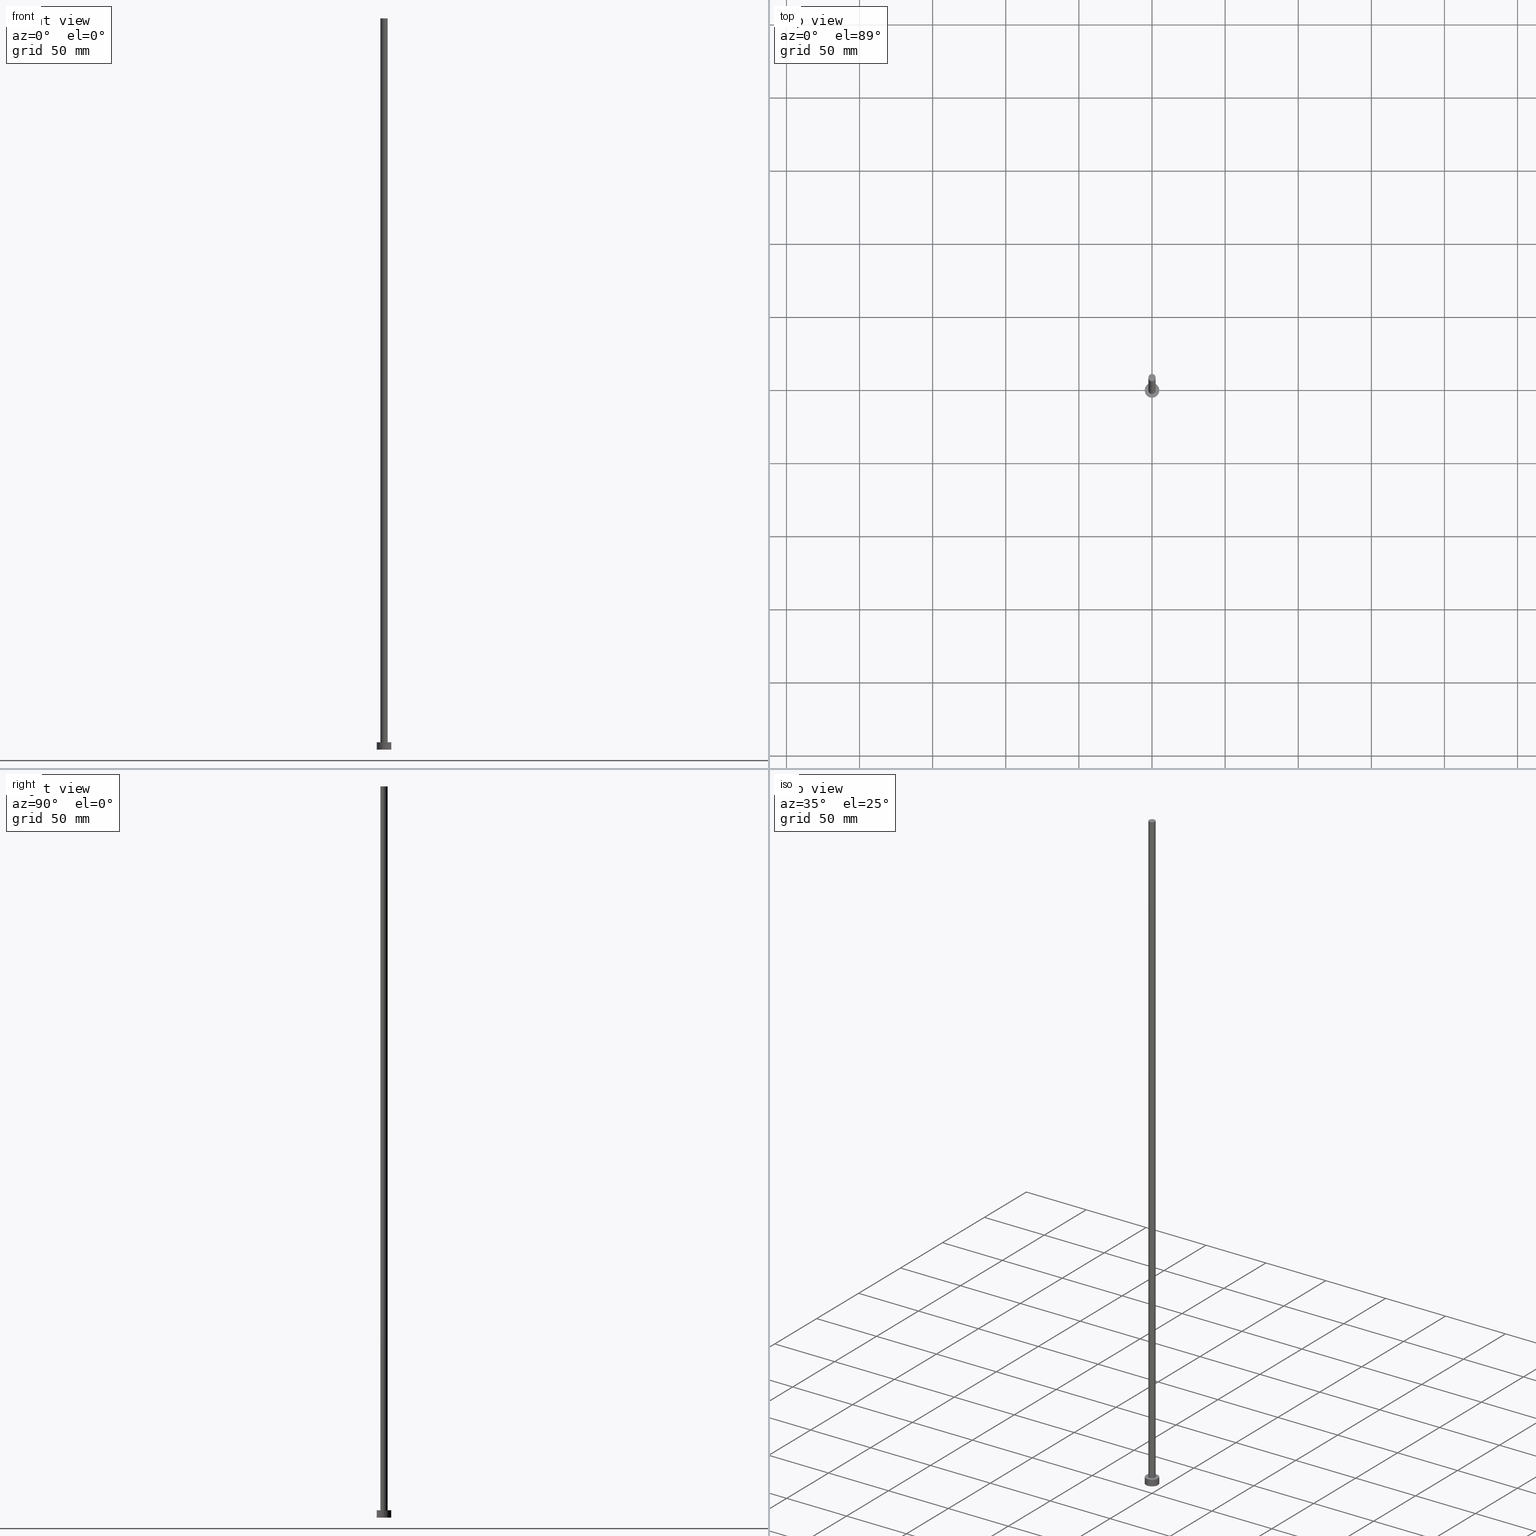
[diagram: canonical four-view strip — front | top / right | iso, engineering-drawing reading convention]
A machine part, canonical four-view strip (front | top / right | iso — engineering-drawing reading convention). The complete STEP part file that produces these views, byte-faithful:
ISO-10303-21;
HEADER;
FILE_DESCRIPTION (( 'STEP AP203' ),
    '1' );
FILE_NAME ('6989.STEP',
    '2023-02-13T16:05:43',
    ( '' ),
    ( '' ),
    'SwSTEP 2.0',
    'SolidWorks 2019',
    '' );
FILE_SCHEMA (( 'CONFIG_CONTROL_DESIGN' ));
ENDSEC;

DATA;
#1 = CARTESIAN_POINT ( 'NONE',  ( 5.000000000000000000, 6.123233995736766282E-16, 5.000000000000000000 ) ) ;
#2 = EDGE_CURVE ( 'NONE', #78, #222, #195, .T. ) ;
#3 = FACE_OUTER_BOUND ( 'NONE', #15, .T. ) ;
#4 = CALENDAR_DATE ( 2023, 13, 2 ) ;
#5 = DATE_AND_TIME ( #187, #160 ) ;
#6 = CC_DESIGN_PERSON_AND_ORGANIZATION_ASSIGNMENT ( #76, #162, ( #10 ) ) ;
#7 = AXIS2_PLACEMENT_3D ( 'NONE', #198, #174, #18 ) ;
#8 = CARTESIAN_POINT ( 'NONE',  ( 2.500000000000000000, 3.061616997868383141E-16, 500.0000000000000000 ) ) ;
#9 = CALENDAR_DATE ( 2023, 13, 2 ) ;
#10 = PRODUCT_DEFINITION_FORMATION_WITH_SPECIFIED_SOURCE ( 'LIBOVOLN�', '', #88, .NOT_KNOWN. ) ;
#11 = APPROVAL_DATE_TIME ( #121, #197 ) ;
#12 = VERTEX_POINT ( 'NONE', #1 ) ;
#13 = DIRECTION ( 'NONE',  ( -0.000000000000000000, -0.000000000000000000, -1.000000000000000000 ) ) ;
#14 = ADVANCED_FACE ( 'NONE', ( #165 ), #244, .T. ) ;
#15 = EDGE_LOOP ( 'NONE', ( #141, #103 ) ) ;
#16 = EDGE_LOOP ( 'NONE', ( #229, #183, #129, #101 ) ) ;
#17 = VECTOR ( 'NONE', #31, 1000.000000000000000 ) ;
#18 = DIRECTION ( 'NONE',  ( 1.000000000000000000, 0.000000000000000000, 0.000000000000000000 ) ) ;
#19 = CC_DESIGN_APPROVAL ( #203, ( #245 ) ) ;
#20 = VERTEX_POINT ( 'NONE', #213 ) ;
#21 = APPLICATION_CONTEXT ( 'configuration controlled 3d designs of mechanical parts and assemblies' ) ;
#22 = CARTESIAN_POINT ( 'NONE',  ( 0.000000000000000000, 0.000000000000000000, 0.000000000000000000 ) ) ;
#23 = EDGE_CURVE ( 'NONE', #78, #43, #250, .T. ) ;
#24 = AXIS2_PLACEMENT_3D ( 'NONE', #108, #190, #210 ) ;
#25 = AXIS2_PLACEMENT_3D ( 'NONE', #35, #120, #94 ) ;
#26 = ORIENTED_EDGE ( 'NONE', *, *, #59, .T. ) ;
#27 = CARTESIAN_POINT ( 'NONE',  ( 0.000000000000000000, 0.000000000000000000, 500.0000000000000000 ) ) ;
#28 = LOCAL_TIME ( 17, 5, 43.00000000000000000, #102 ) ;
#29 = CARTESIAN_POINT ( 'NONE',  ( 5.000000000000000000, 6.123233995736766282E-16, 5.000000000000000000 ) ) ;
#30 = APPROVAL_ROLE ( '' ) ;
#31 = DIRECTION ( 'NONE',  ( -0.000000000000000000, -0.000000000000000000, -1.000000000000000000 ) ) ;
#32 = ORIENTED_EDGE ( 'NONE', *, *, #2, .F. ) ;
#33 = DIRECTION ( 'NONE',  ( 0.000000000000000000, 0.000000000000000000, 1.000000000000000000 ) ) ;
#34 = PERSON_AND_ORGANIZATION ( #107, #214 ) ;
#35 = CARTESIAN_POINT ( 'NONE',  ( 0.000000000000000000, 0.000000000000000000, 0.000000000000000000 ) ) ;
#36 = AXIS2_PLACEMENT_3D ( 'NONE', #136, #66, #84 ) ;
#37 = AXIS2_PLACEMENT_3D ( 'NONE', #122, #200, #118 ) ;
#38 = CARTESIAN_POINT ( 'NONE',  ( -5.000000000000000000, 0.000000000000000000, 0.000000000000000000 ) ) ;
#39 = ORIENTED_EDGE ( 'NONE', *, *, #59, .F. ) ;
#40 = AXIS2_PLACEMENT_3D ( 'NONE', #138, #13, #220 ) ;
#41 = CC_DESIGN_PERSON_AND_ORGANIZATION_ASSIGNMENT ( #176, #199, ( #245 ) ) ;
#42 = MECHANICAL_CONTEXT ( 'NONE', #206, 'mechanical' ) ;
#43 = VERTEX_POINT ( 'NONE', #216 ) ;
#44 = CC_DESIGN_PERSON_AND_ORGANIZATION_ASSIGNMENT ( #161, #98, ( #10 ) ) ;
#45 = DATE_AND_TIME ( #4, #28 ) ;
#46 = CARTESIAN_POINT ( 'NONE',  ( 0.000000000000000000, 0.000000000000000000, 5.000000000000000000 ) ) ;
#47 = DIRECTION ( 'NONE',  ( -0.000000000000000000, -0.000000000000000000, -1.000000000000000000 ) ) ;
#48 = LOCAL_TIME ( 17, 5, 43.00000000000000000, #144 ) ;
#49 = ADVANCED_FACE ( 'NONE', ( #50, #3 ), #86, .T. ) ;
#50 = FACE_BOUND ( 'NONE', #54, .T. ) ;
#51 = ADVANCED_FACE ( 'NONE', ( #248 ), #110, .T. ) ;
#52 = DESIGN_CONTEXT ( 'detailed design', #21, 'design' ) ;
#53 = CARTESIAN_POINT ( 'NONE',  ( 0.000000000000000000, 0.000000000000000000, 5.000000000000000000 ) ) ;
#54 = EDGE_LOOP ( 'NONE', ( #151, #60 ) ) ;
#55 = CC_DESIGN_SECURITY_CLASSIFICATION ( #62, ( #10 ) ) ;
#56 = CARTESIAN_POINT ( 'NONE',  ( 2.500000000000000000, 3.061616997868383141E-16, 5.000000000000000000 ) ) ;
#57 = CARTESIAN_POINT ( 'NONE',  ( 0.000000000000000000, 0.000000000000000000, 5.000000000000000000 ) ) ;
#58 = PERSON_AND_ORGANIZATION ( #107, #214 ) ;
#59 = EDGE_CURVE ( 'NONE', #222, #78, #61, .T. ) ;
#60 = ORIENTED_EDGE ( 'NONE', *, *, #172, .F. ) ;
#61 = CIRCLE ( 'NONE', #179, 2.500000000000000000 ) ;
#62 = SECURITY_CLASSIFICATION ( '', '', #146 ) ;
#63 = CARTESIAN_POINT ( 'NONE',  ( 0.000000000000000000, 0.000000000000000000, 5.000000000000000000 ) ) ;
#64 = PLANE ( 'NONE',  #24 ) ;
#65 = CALENDAR_DATE ( 2023, 13, 2 ) ;
#66 = DIRECTION ( 'NONE',  ( -0.000000000000000000, -0.000000000000000000, -1.000000000000000000 ) ) ;
#67 = EDGE_CURVE ( 'NONE', #222, #242, #247, .T. ) ;
#68 = PRODUCT_RELATED_PRODUCT_CATEGORY ( 'detail', '', ( #88 ) ) ;
#69 = AXIS2_PLACEMENT_3D ( 'NONE', #46, #155, #215 ) ;
#70 = APPROVAL ( #246, 'NEUR�EN�' ) ;
#71 = CARTESIAN_POINT ( 'NONE',  ( 2.500000000000000000, 3.061616997868383141E-16, 500.0000000000000000 ) ) ;
#72 = EDGE_CURVE ( 'NONE', #43, #242, #219, .T. ) ;
#73 =( LENGTH_UNIT ( ) NAMED_UNIT ( * ) SI_UNIT ( .MILLI., .METRE. ) );
#74 = CIRCLE ( 'NONE', #7, 5.000000000000000000 ) ;
#75 = VECTOR ( 'NONE', #192, 1000.000000000000000 ) ;
#76 = PERSON_AND_ORGANIZATION ( #107, #214 ) ;
#77 = ORIENTED_EDGE ( 'NONE', *, *, #109, .T. ) ;
#78 = VERTEX_POINT ( 'NONE', #90 ) ;
#79 = ORIENTED_EDGE ( 'NONE', *, *, #182, .F. ) ;
#80 = ADVANCED_BREP_SHAPE_REPRESENTATION ( '6989', ( #132, #127 ), #237 ) ;
#81 = CLOSED_SHELL ( 'NONE', ( #209, #124, #14, #49, #255, #51, #105 ) ) ;
#82 = COORDINATED_UNIVERSAL_TIME_OFFSET ( 1, 0, .AHEAD. ) ;
#83 = LOCAL_TIME ( 17, 5, 43.00000000000000000, #221 ) ;
#84 = DIRECTION ( 'NONE',  ( -1.000000000000000000, 0.000000000000000000, 0.000000000000000000 ) ) ;
#85 = UNCERTAINTY_MEASURE_WITH_UNIT (LENGTH_MEASURE( 1.000000000000000082E-05 ), #73, 'distance_accuracy_value', 'NONE');
#86 = PLANE ( 'NONE',  #69 ) ;
#87 = APPROVAL_STATUS ( 'not_yet_approved' ) ;
#88 = PRODUCT ( '6989', '6989', '', ( #42 ) ) ;
#89 = LINE ( 'NONE', #29, #227 ) ;
#90 = CARTESIAN_POINT ( 'NONE',  ( -2.500000000000000000, 0.000000000000000000, 500.0000000000000000 ) ) ;
#91 = ORIENTED_EDGE ( 'NONE', *, *, #182, .T. ) ;
#92 =( NAMED_UNIT ( * ) PLANE_ANGLE_UNIT ( ) SI_UNIT ( $, .RADIAN. ) );
#93 = CARTESIAN_POINT ( 'NONE',  ( 0.000000000000000000, 0.000000000000000000, 5.000000000000000000 ) ) ;
#94 = DIRECTION ( 'NONE',  ( 1.000000000000000000, 0.000000000000000000, 0.000000000000000000 ) ) ;
#95 = APPROVAL_PERSON_ORGANIZATION ( #166, #70, #208 ) ;
#96 = DIRECTION ( 'NONE',  ( -1.000000000000000000, 0.000000000000000000, 0.000000000000000000 ) ) ;
#97 = ORIENTED_EDGE ( 'NONE', *, *, #172, .T. ) ;
#98 = PERSON_AND_ORGANIZATION_ROLE ( 'creator' ) ;
#99 = AXIS2_PLACEMENT_3D ( 'NONE', #27, #104, #184 ) ;
#100 = CIRCLE ( 'NONE', #25, 5.000000000000000000 ) ;
#101 = ORIENTED_EDGE ( 'NONE', *, *, #226, .T. ) ;
#102 = COORDINATED_UNIVERSAL_TIME_OFFSET ( 1, 0, .AHEAD. ) ;
#103 = ORIENTED_EDGE ( 'NONE', *, *, #185, .T. ) ;
#104 = DIRECTION ( 'NONE',  ( 0.000000000000000000, 0.000000000000000000, 1.000000000000000000 ) ) ;
#105 = ADVANCED_FACE ( 'NONE', ( #171 ), #64, .T. ) ;
#106 = LOCAL_TIME ( 17, 5, 43.00000000000000000, #82 ) ;
#107 = PERSON ( 'NEUR�EN�', 'NEUR�EN�', 'NEUR�EN�', ('NEUR�EN�'), ('NEUR�EN�'), ('NEUR�EN�') ) ;
#108 = CARTESIAN_POINT ( 'NONE',  ( 0.000000000000000000, 0.000000000000000000, 500.0000000000000000 ) ) ;
#109 = EDGE_CURVE ( 'NONE', #12, #239, #89, .T. ) ;
#110 = CYLINDRICAL_SURFACE ( 'NONE', #36, 2.500000000000000000 ) ;
#111 = COORDINATED_UNIVERSAL_TIME_OFFSET ( 1, 0, .AHEAD. ) ;
#112 = FACE_OUTER_BOUND ( 'NONE', #223, .T. ) ;
#113 = EDGE_CURVE ( 'NONE', #20, #212, #133, .T. ) ;
#114 = SHAPE_DEFINITION_REPRESENTATION ( #235, #80 ) ;
#115 = DIRECTION ( 'NONE',  ( 1.000000000000000000, 0.000000000000000000, 0.000000000000000000 ) ) ;
#116 = APPROVAL_STATUS ( 'not_yet_approved' ) ;
#117 = APPLICATION_PROTOCOL_DEFINITION ( 'international standard', 'config_control_design', 1994, #21 ) ;
#118 = DIRECTION ( 'NONE',  ( 1.000000000000000000, 0.000000000000000000, -0.000000000000000000 ) ) ;
#119 = CC_DESIGN_DATE_AND_TIME_ASSIGNMENT ( #157, #234, ( #245 ) ) ;
#120 = DIRECTION ( 'NONE',  ( 0.000000000000000000, 0.000000000000000000, 1.000000000000000000 ) ) ;
#121 = DATE_AND_TIME ( #9, #83 ) ;
#122 = CARTESIAN_POINT ( 'NONE',  ( 0.000000000000000000, 0.000000000000000000, 0.000000000000000000 ) ) ;
#123 = DIRECTION ( 'NONE',  ( 1.000000000000000000, 0.000000000000000000, 0.000000000000000000 ) ) ;
#124 = ADVANCED_FACE ( 'NONE', ( #112 ), #188, .T. ) ;
#125 = PERSON_AND_ORGANIZATION ( #107, #214 ) ;
#126 = ORIENTED_EDGE ( 'NONE', *, *, #67, .F. ) ;
#127 = AXIS2_PLACEMENT_3D ( 'NONE', #22, #240, #131 ) ;
#128 = APPROVAL_DATE_TIME ( #164, #70 ) ;
#129 = ORIENTED_EDGE ( 'NONE', *, *, #113, .T. ) ;
#130 = EDGE_CURVE ( 'NONE', #20, #12, #149, .T. ) ;
#131 = DIRECTION ( 'NONE',  ( 1.000000000000000000, 0.000000000000000000, 0.000000000000000000 ) ) ;
#132 = MANIFOLD_SOLID_BREP ( 'P�idat vysunut�m3', #81 ) ;
#133 = LINE ( 'NONE', #211, #17 ) ;
#134 = CARTESIAN_POINT ( 'NONE',  ( -2.500000000000000000, 0.000000000000000000, 500.0000000000000000 ) ) ;
#135 = ORIENTED_EDGE ( 'NONE', *, *, #67, .T. ) ;
#136 = CARTESIAN_POINT ( 'NONE',  ( 0.000000000000000000, 0.000000000000000000, 500.0000000000000000 ) ) ;
#137 = EDGE_LOOP ( 'NONE', ( #196, #79 ) ) ;
#138 = CARTESIAN_POINT ( 'NONE',  ( 0.000000000000000000, 0.000000000000000000, 500.0000000000000000 ) ) ;
#139 = AXIS2_PLACEMENT_3D ( 'NONE', #233, #169, #231 ) ;
#140 = CIRCLE ( 'NONE', #180, 2.500000000000000000 ) ;
#141 = ORIENTED_EDGE ( 'NONE', *, *, #130, .T. ) ;
#142 = PLANE ( 'NONE',  #37 ) ;
#143 = DIRECTION ( 'NONE',  ( 1.000000000000000000, 0.000000000000000000, 0.000000000000000000 ) ) ;
#144 = COORDINATED_UNIVERSAL_TIME_OFFSET ( 1, 0, .AHEAD. ) ;
#145 = DIRECTION ( 'NONE',  ( -0.000000000000000000, -0.000000000000000000, -1.000000000000000000 ) ) ;
#146 = SECURITY_CLASSIFICATION_LEVEL ( 'unclassified' ) ;
#147 = APPLICATION_PROTOCOL_DEFINITION ( 'international standard', 'config_control_design', 1994, #206 ) ;
#148 = PERSON_AND_ORGANIZATION_ROLE ( 'classification_officer' ) ;
#149 = CIRCLE ( 'NONE', #189, 5.000000000000000000 ) ;
#150 = CC_DESIGN_APPROVAL ( #197, ( #10 ) ) ;
#151 = ORIENTED_EDGE ( 'NONE', *, *, #72, .F. ) ;
#152 = CC_DESIGN_PERSON_AND_ORGANIZATION_ASSIGNMENT ( #58, #224, ( #88 ) ) ;
#153 = DIRECTION ( 'NONE',  ( -0.000000000000000000, -0.000000000000000000, -1.000000000000000000 ) ) ;
#154 = APPROVAL_PERSON_ORGANIZATION ( #158, #203, #30 ) ;
#155 = DIRECTION ( 'NONE',  ( 0.000000000000000000, 0.000000000000000000, 1.000000000000000000 ) ) ;
#156 = CARTESIAN_POINT ( 'NONE',  ( 0.000000000000000000, 0.000000000000000000, 500.0000000000000000 ) ) ;
#157 = DATE_AND_TIME ( #178, #48 ) ;
#158 = PERSON_AND_ORGANIZATION ( #107, #214 ) ;
#159 = CARTESIAN_POINT ( 'NONE',  ( 0.000000000000000000, 0.000000000000000000, 5.000000000000000000 ) ) ;
#160 = LOCAL_TIME ( 17, 5, 43.00000000000000000, #111 ) ;
#161 = PERSON_AND_ORGANIZATION ( #107, #214 ) ;
#162 = PERSON_AND_ORGANIZATION_ROLE ( 'design_supplier' ) ;
#163 = ORIENTED_EDGE ( 'NONE', *, *, #2, .T. ) ;
#164 = DATE_AND_TIME ( #65, #106 ) ;
#165 = FACE_OUTER_BOUND ( 'NONE', #16, .T. ) ;
#166 = PERSON_AND_ORGANIZATION ( #107, #214 ) ;
#167 = DIRECTION ( 'NONE',  ( -0.000000000000000000, -0.000000000000000000, -1.000000000000000000 ) ) ;
#168 = DATE_TIME_ROLE ( 'classification_date' ) ;
#169 = DIRECTION ( 'NONE',  ( 0.000000000000000000, 0.000000000000000000, 1.000000000000000000 ) ) ;
#170 = CIRCLE ( 'NONE', #228, 5.000000000000000000 ) ;
#171 = FACE_OUTER_BOUND ( 'NONE', #191, .T. ) ;
#172 = EDGE_CURVE ( 'NONE', #242, #43, #140, .T. ) ;
#173 =( NAMED_UNIT ( * ) SI_UNIT ( $, .STERADIAN. ) SOLID_ANGLE_UNIT ( ) );
#174 = DIRECTION ( 'NONE',  ( 0.000000000000000000, 0.000000000000000000, 1.000000000000000000 ) ) ;
#175 = AXIS2_PLACEMENT_3D ( 'NONE', #63, #153, #186 ) ;
#176 = PERSON_AND_ORGANIZATION ( #107, #214 ) ;
#177 = CARTESIAN_POINT ( 'NONE',  ( 5.000000000000000000, 6.123233995736766282E-16, 0.000000000000000000 ) ) ;
#178 = CALENDAR_DATE ( 2023, 13, 2 ) ;
#179 = AXIS2_PLACEMENT_3D ( 'NONE', #156, #33, #115 ) ;
#180 = AXIS2_PLACEMENT_3D ( 'NONE', #53, #252, #253 ) ;
#181 = ORIENTED_EDGE ( 'NONE', *, *, #23, .F. ) ;
#182 = EDGE_CURVE ( 'NONE', #239, #212, #100, .T. ) ;
#183 = ORIENTED_EDGE ( 'NONE', *, *, #130, .F. ) ;
#184 = DIRECTION ( 'NONE',  ( 1.000000000000000000, 0.000000000000000000, 0.000000000000000000 ) ) ;
#185 = EDGE_CURVE ( 'NONE', #12, #20, #170, .T. ) ;
#186 = DIRECTION ( 'NONE',  ( -1.000000000000000000, 0.000000000000000000, 0.000000000000000000 ) ) ;
#187 = CALENDAR_DATE ( 2023, 13, 2 ) ;
#188 = CYLINDRICAL_SURFACE ( 'NONE', #207, 5.000000000000000000 ) ;
#189 = AXIS2_PLACEMENT_3D ( 'NONE', #93, #194, #143 ) ;
#190 = DIRECTION ( 'NONE',  ( 0.000000000000000000, 0.000000000000000000, 1.000000000000000000 ) ) ;
#191 = EDGE_LOOP ( 'NONE', ( #163, #26 ) ) ;
#192 = DIRECTION ( 'NONE',  ( -0.000000000000000000, -0.000000000000000000, -1.000000000000000000 ) ) ;
#193 = APPROVAL_ROLE ( '' ) ;
#194 = DIRECTION ( 'NONE',  ( 0.000000000000000000, 0.000000000000000000, 1.000000000000000000 ) ) ;
#195 = CIRCLE ( 'NONE', #99, 2.500000000000000000 ) ;
#196 = ORIENTED_EDGE ( 'NONE', *, *, #226, .F. ) ;
#197 = APPROVAL ( #116, 'NEUR�EN�' ) ;
#198 = CARTESIAN_POINT ( 'NONE',  ( 0.000000000000000000, 0.000000000000000000, 0.000000000000000000 ) ) ;
#199 = PERSON_AND_ORGANIZATION_ROLE ( 'creator' ) ;
#200 = DIRECTION ( 'NONE',  ( 0.000000000000000000, 0.000000000000000000, 1.000000000000000000 ) ) ;
#201 = FACE_OUTER_BOUND ( 'NONE', #202, .T. ) ;
#202 = EDGE_LOOP ( 'NONE', ( #39, #135, #97, #181 ) ) ;
#203 = APPROVAL ( #87, 'NEUR�EN�' ) ;
#204 = ORIENTED_EDGE ( 'NONE', *, *, #72, .T. ) ;
#205 = ORIENTED_EDGE ( 'NONE', *, *, #185, .F. ) ;
#206 = APPLICATION_CONTEXT ( 'configuration controlled 3d designs of mechanical parts and assemblies' ) ;
#207 = AXIS2_PLACEMENT_3D ( 'NONE', #57, #145, #96 ) ;
#208 = APPROVAL_ROLE ( '' ) ;
#209 = ADVANCED_FACE ( 'NONE', ( #201 ), #236, .T. ) ;
#210 = DIRECTION ( 'NONE',  ( 1.000000000000000000, 0.000000000000000000, -0.000000000000000000 ) ) ;
#211 = CARTESIAN_POINT ( 'NONE',  ( -5.000000000000000000, 0.000000000000000000, 5.000000000000000000 ) ) ;
#212 = VERTEX_POINT ( 'NONE', #38 ) ;
#213 = CARTESIAN_POINT ( 'NONE',  ( -5.000000000000000000, 0.000000000000000000, 5.000000000000000000 ) ) ;
#214 = ORGANIZATION ( 'NEUR�EN�', 'NEUR�EN�', '' ) ;
#215 = DIRECTION ( 'NONE',  ( 1.000000000000000000, 0.000000000000000000, -0.000000000000000000 ) ) ;
#216 = CARTESIAN_POINT ( 'NONE',  ( -2.500000000000000000, 0.000000000000000000, 5.000000000000000000 ) ) ;
#217 = CC_DESIGN_DATE_AND_TIME_ASSIGNMENT ( #45, #168, ( #62 ) ) ;
#218 = DIRECTION ( 'NONE',  ( 0.000000000000000000, 0.000000000000000000, 1.000000000000000000 ) ) ;
#219 = CIRCLE ( 'NONE', #139, 2.500000000000000000 ) ;
#220 = DIRECTION ( 'NONE',  ( -1.000000000000000000, 0.000000000000000000, 0.000000000000000000 ) ) ;
#221 = COORDINATED_UNIVERSAL_TIME_OFFSET ( 1, 0, .AHEAD. ) ;
#222 = VERTEX_POINT ( 'NONE', #71 ) ;
#223 = EDGE_LOOP ( 'NONE', ( #205, #77, #91, #254 ) ) ;
#224 = PERSON_AND_ORGANIZATION_ROLE ( 'design_owner' ) ;
#225 = CC_DESIGN_PERSON_AND_ORGANIZATION_ASSIGNMENT ( #125, #148, ( #62 ) ) ;
#226 = EDGE_CURVE ( 'NONE', #212, #239, #74, .T. ) ;
#227 = VECTOR ( 'NONE', #47, 1000.000000000000000 ) ;
#228 = AXIS2_PLACEMENT_3D ( 'NONE', #159, #218, #123 ) ;
#229 = ORIENTED_EDGE ( 'NONE', *, *, #109, .F. ) ;
#230 = APPROVAL_PERSON_ORGANIZATION ( #34, #197, #193 ) ;
#231 = DIRECTION ( 'NONE',  ( 1.000000000000000000, 0.000000000000000000, 0.000000000000000000 ) ) ;
#232 = APPROVAL_DATE_TIME ( #5, #203 ) ;
#233 = CARTESIAN_POINT ( 'NONE',  ( 0.000000000000000000, 0.000000000000000000, 5.000000000000000000 ) ) ;
#234 = DATE_TIME_ROLE ( 'creation_date' ) ;
#235 = PRODUCT_DEFINITION_SHAPE ( 'NONE', 'NONE',  #245 ) ;
#236 = CYLINDRICAL_SURFACE ( 'NONE', #40, 2.500000000000000000 ) ;
#237 =( GEOMETRIC_REPRESENTATION_CONTEXT ( 3 ) GLOBAL_UNCERTAINTY_ASSIGNED_CONTEXT ( ( #85 ) ) GLOBAL_UNIT_ASSIGNED_CONTEXT ( ( #73, #92, #173 ) ) REPRESENTATION_CONTEXT ( 'NONE', 'WORKASPACE' ) );
#238 = FACE_OUTER_BOUND ( 'NONE', #137, .T. ) ;
#239 = VERTEX_POINT ( 'NONE', #177 ) ;
#240 = DIRECTION ( 'NONE',  ( 0.000000000000000000, 0.000000000000000000, 1.000000000000000000 ) ) ;
#241 = EDGE_LOOP ( 'NONE', ( #126, #32, #249, #204 ) ) ;
#242 = VERTEX_POINT ( 'NONE', #56 ) ;
#243 = CC_DESIGN_APPROVAL ( #70, ( #62 ) ) ;
#244 = CYLINDRICAL_SURFACE ( 'NONE', #175, 5.000000000000000000 ) ;
#245 = PRODUCT_DEFINITION ( 'NEZN�M�', '', #10, #52 ) ;
#246 = APPROVAL_STATUS ( 'not_yet_approved' ) ;
#247 = LINE ( 'NONE', #8, #251 ) ;
#248 = FACE_OUTER_BOUND ( 'NONE', #241, .T. ) ;
#249 = ORIENTED_EDGE ( 'NONE', *, *, #23, .T. ) ;
#250 = LINE ( 'NONE', #134, #75 ) ;
#251 = VECTOR ( 'NONE', #167, 1000.000000000000000 ) ;
#252 = DIRECTION ( 'NONE',  ( 0.000000000000000000, 0.000000000000000000, 1.000000000000000000 ) ) ;
#253 = DIRECTION ( 'NONE',  ( 1.000000000000000000, 0.000000000000000000, 0.000000000000000000 ) ) ;
#254 = ORIENTED_EDGE ( 'NONE', *, *, #113, .F. ) ;
#255 = ADVANCED_FACE ( 'NONE', ( #238 ), #142, .F. ) ;
ENDSEC;
END-ISO-10303-21;
